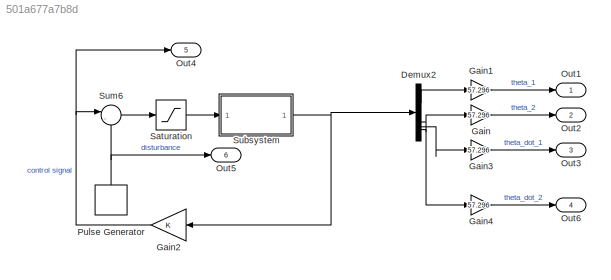
MODEL slx_501a677a7b8d
KIND model
CONFIG AbsTol = auto
CONFIG EnableMultiTasking = off
CONFIG FixedStep = auto
CONFIG MaxStep = 0.01
CONFIG MinStep = auto
CONFIG RelTol = 1e-10
CONFIG SampleTimeConstraint = Unconstrained
CONFIG SolverName = VariableStepAuto
CONFIG StartTime = 0.0
CONFIG StopTime = 10
BLOCK [Demux] Demux2
BLOCK [Gain] Gain
  Gain = 57.296
BLOCK [Gain] Gain1
  Gain = 57.296
BLOCK [Gain] Gain2
  Gain = K
  Multiplication = Matrix(K*u)
  NameLocation = top
BLOCK [Gain] Gain3
  Gain = 57.296
BLOCK [Gain] Gain4
  Gain = 57.296
BLOCK [Outport] Out1
BLOCK [Outport] Out2
  Port = 2
BLOCK [Outport] Out3
  Port = 3
BLOCK [Outport] Out4
  Port = 5
BLOCK [Outport] Out5
  Port = 6
BLOCK [Outport] Out6
  Port = 4
BLOCK [DiscretePulseGenerator] Pulse Generator
  NameLocation = right
  Period = 10
  PhaseDelay = 1
  PulseType = Time based
  PulseWidth = 10
BLOCK [Saturate] Saturation
  LowerLimit = -12
  UpperLimit = 12
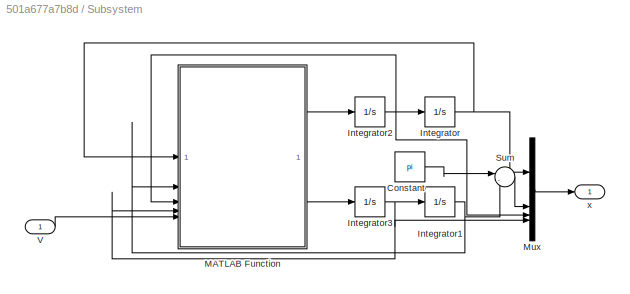
BLOCK [SubSystem] Subsystem
BLOCK [Constant] Subsystem/Constant
  Value = pi
BLOCK [Integrator] Subsystem/Integrator
BLOCK [Integrator] Subsystem/Integrator1
  InitialCondition = pi
BLOCK [Integrator] Subsystem/Integrator2
BLOCK [Integrator] Subsystem/Integrator3
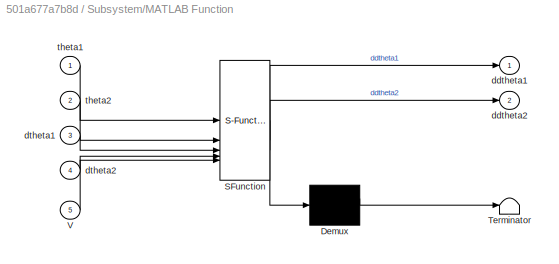
BLOCK [SubSystem] Subsystem/MATLAB Function
  ErrorFcn = Stateflow.Translate.translate
  PermitHierarchicalResolution = ExplicitOnly
  SFBlockType = MATLAB Function
  TreatAsAtomicUnit = on
BLOCK [Demux] Subsystem/MATLAB Function/ Demux 
  Outputs = 1
BLOCK [S-Function] Subsystem/MATLAB Function/ SFunction 
  EnableBusSupport = on
  FunctionName = sf_sfun
  PortCounts = [5 3]
  SFcnIsStateOwnerBlock = off
  SFunctionDeploymentMode = off
  Tag = Stateflow S-Function 2
BLOCK [Terminator] Subsystem/MATLAB Function/ Terminator 
BLOCK [Inport] Subsystem/MATLAB Function/V
  Port = 5
BLOCK [Outport] Subsystem/MATLAB Function/ddtheta1
BLOCK [Outport] Subsystem/MATLAB Function/ddtheta2
  Port = 2
BLOCK [Inport] Subsystem/MATLAB Function/dtheta1
  Port = 3
BLOCK [Inport] Subsystem/MATLAB Function/dtheta2
  Port = 4
BLOCK [Inport] Subsystem/MATLAB Function/theta1
BLOCK [Inport] Subsystem/MATLAB Function/theta2
  Port = 2
BLOCK [Mux] Subsystem/Mux
  DisplayOption = bar
BLOCK [Sum] Subsystem/Sum
  Inputs = |-+
BLOCK [Inport] Subsystem/V
BLOCK [Outport] Subsystem/x
BLOCK [Sum] Sum6
  Inputs = |-+
LINE Demux2:1 -> Gain1:1
LINE Demux2:2 -> Gain:1
LINE Demux2:3 -> Gain3:1
LINE Demux2:4 -> Gain4:1
LINE Gain1:1 -> Out1:1
NET Gain2:1 -> Out4:1, Sum6:1
LINE Gain3:1 -> Out3:1
LINE Gain4:1 -> Out6:1
LINE Gain:1 -> Out2:1
NET Pulse Generator:1 -> Out5:1, Sum6:2
LINE Saturation:1 -> Subsystem:1
LINE Subsystem/Constant:1 -> Subsystem/Sum:1
NET Subsystem/Integrator1:1 -> Subsystem/MATLAB Function:2, Subsystem/Sum:2
NET Subsystem/Integrator2:1 -> Subsystem/Integrator:1, Subsystem/MATLAB Function:3, Subsystem/Mux:3
NET Subsystem/Integrator3:1 -> Subsystem/Integrator1:1, Subsystem/MATLAB Function:4, Subsystem/Mux:4
NET Subsystem/Integrator:1 -> Subsystem/MATLAB Function:1, Subsystem/Mux:1
LINE Subsystem/MATLAB Function:1 -> Subsystem/Integrator2:1
LINE Subsystem/MATLAB Function:2 -> Subsystem/Integrator3:1
LINE Subsystem/Mux:1 -> Subsystem/x:1
LINE Subsystem/Sum:1 -> Subsystem/Mux:2
LINE Subsystem/V:1 -> Subsystem/MATLAB Function:5
NET Subsystem:1 -> Demux2:1, Gain2:1
LINE Sum6:1 -> Saturation:1
note: NET lines group one-source signal fan-out (src -> all destinations, sorted); 1:1 wires keep LINE
CHART Subsystem/MATLAB Function states=1 transitions=1
  STATE_LABEL 'eML_blk_kernel()'
  STATE_LABEL 'SCRIPT:\nfunction [ddtheta1, ddtheta2] = furuta_dynamics(theta1, theta2, dtheta1, dtheta2, V)\n\n% Declaração das constantes\ng = 9.8; \nJ0_hat = 86.27e-6; \nJ2_hat = 96.35e-6; \nm2 = 0.016; \nL1 = 0.0362; \nL2 = 0.10;\nl1 = 0.028;\nl2 = 0.073; \nb1 = 1.33e-4; \nb2 = 2.8e-4;\nc1 = 106.99; \nc2 = 5.61; \n\n% 1. CÁLCULO DOS TORQUES DE ENTRADA\ntau1 = J0_hat * (c1 * V - c2 * dtheta1);\ntau2 = 0;\n\n% 2. CÁLCULO DAS ACELE...<+1234ch>'
CHART  states=0 transitions=0
